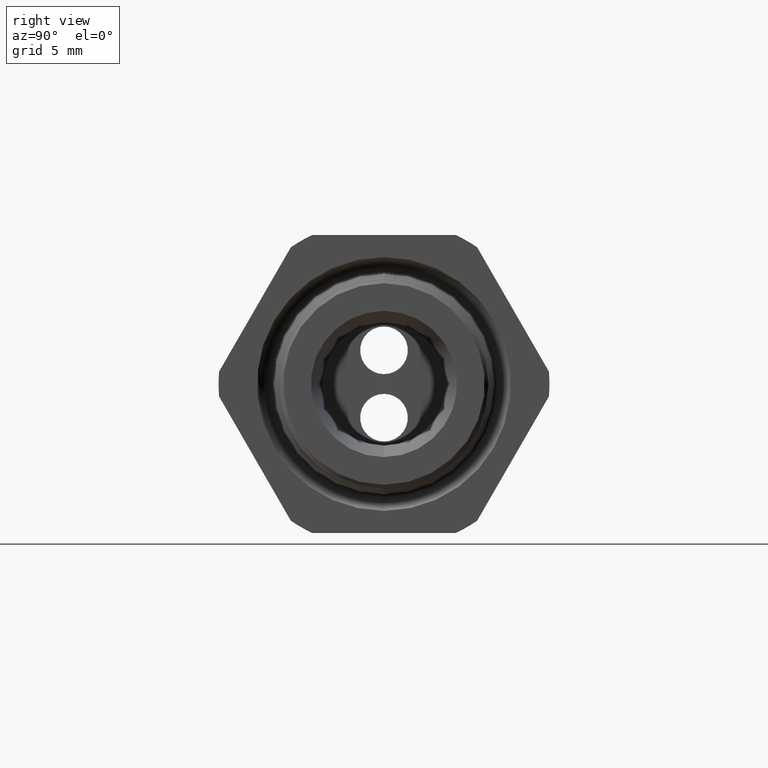
[diagram: clean part render]
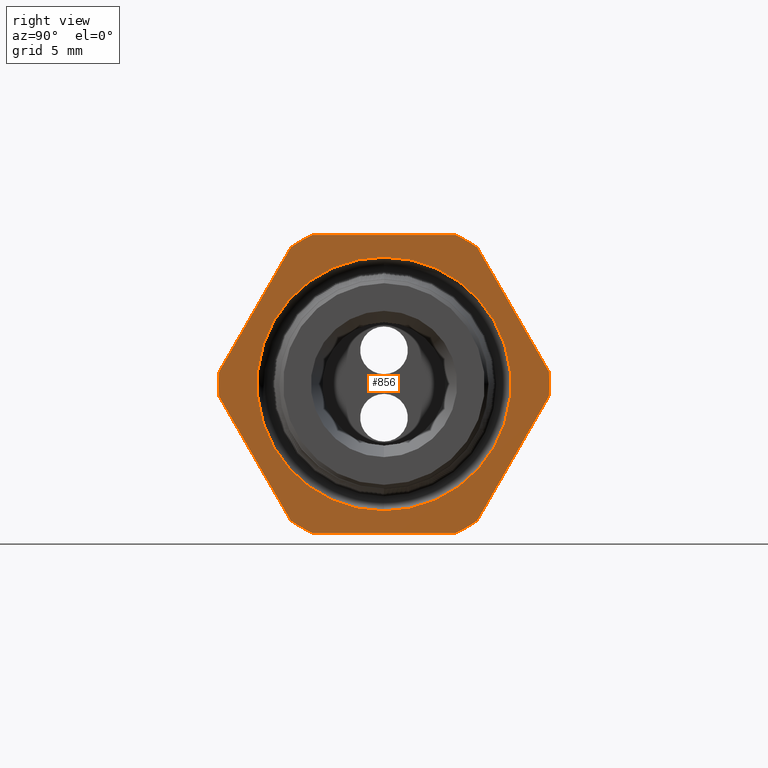
[diagram: same view with one face highlighted and labeled with its STEP entity id]
A machine part, right view. The second image highlights one B-rep face of the part: STEP entity #856.
In plain terms, the highlighted planar face has unit normal (1, 0, 0).
Its self-contained STEP definition (entity closure, byte-faithful):
#844 = EDGE_CURVE ( 'NONE', #927, #845, #3362, .T. ) ;
#845 = VERTEX_POINT ( 'NONE', #3353 ) ;
#846 = ORIENTED_EDGE ( 'NONE', *, *, #847, .T. ) ;
#847 = EDGE_CURVE ( 'NONE', #845, #848, #3352, .T. ) ;
#848 = VERTEX_POINT ( 'NONE', #3348 ) ;
#849 = ORIENTED_EDGE ( 'NONE', *, *, #850, .T. ) ;
#850 = EDGE_CURVE ( 'NONE', #848, #851, #3347, .T. ) ;
#851 = VERTEX_POINT ( 'NONE', #3342 ) ;
#852 = VERTEX_POINT ( 'NONE', #3341 ) ;
#856 = ADVANCED_FACE ( 'NONE', ( #3401, #3400 ), #3399, .T. ) ;
#857 = EDGE_LOOP ( 'NONE', ( #859, #861 ) ) ;
#859 = ORIENTED_EDGE ( 'NONE', *, *, #860, .F. ) ;
#860 = EDGE_CURVE ( 'NONE', #1481, #1367, #3392, .T. ) ;
#861 = ORIENTED_EDGE ( 'NONE', *, *, #1407, .F. ) ;
#862 = EDGE_LOOP ( 'NONE', ( #863, #867, #924, #928, #846, #849, #908, #910, #913, #916, #920, #892 ) ) ;
#863 = ORIENTED_EDGE ( 'NONE', *, *, #864, .T. ) ;
#864 = EDGE_CURVE ( 'NONE', #865, #866, #3393, .T. ) ;
#865 = VERTEX_POINT ( 'NONE', #3384 ) ;
#866 = VERTEX_POINT ( 'NONE', #3383 ) ;
#867 = ORIENTED_EDGE ( 'NONE', *, *, #868, .T. ) ;
#868 = EDGE_CURVE ( 'NONE', #866, #869, #3382, .T. ) ;
#869 = VERTEX_POINT ( 'NONE', #3377 ) ;
#892 = ORIENTED_EDGE ( 'NONE', *, *, #893, .T. ) ;
#893 = EDGE_CURVE ( 'NONE', #922, #865, #3488, .T. ) ;
#908 = ORIENTED_EDGE ( 'NONE', *, *, #909, .T. ) ;
#909 = EDGE_CURVE ( 'NONE', #851, #852, #3512, .T. ) ;
#910 = ORIENTED_EDGE ( 'NONE', *, *, #911, .T. ) ;
#911 = EDGE_CURVE ( 'NONE', #852, #912, #3508, .T. ) ;
#912 = VERTEX_POINT ( 'NONE', #3503 ) ;
#913 = ORIENTED_EDGE ( 'NONE', *, *, #914, .T. ) ;
#914 = EDGE_CURVE ( 'NONE', #912, #915, #3502, .T. ) ;
#915 = VERTEX_POINT ( 'NONE', #3498 ) ;
#916 = ORIENTED_EDGE ( 'NONE', *, *, #917, .T. ) ;
#917 = EDGE_CURVE ( 'NONE', #915, #918, #3497, .T. ) ;
#918 = VERTEX_POINT ( 'NONE', #3556 ) ;
#920 = ORIENTED_EDGE ( 'NONE', *, *, #921, .T. ) ;
#921 = EDGE_CURVE ( 'NONE', #918, #922, #3550, .T. ) ;
#922 = VERTEX_POINT ( 'NONE', #3546 ) ;
#924 = ORIENTED_EDGE ( 'NONE', *, *, #926, .T. ) ;
#926 = EDGE_CURVE ( 'NONE', #869, #927, #3545, .T. ) ;
#927 = VERTEX_POINT ( 'NONE', #3541 ) ;
#928 = ORIENTED_EDGE ( 'NONE', *, *, #844, .T. ) ;
#1367 = VERTEX_POINT ( 'NONE', #4226 ) ;
#1407 = EDGE_CURVE ( 'NONE', #1367, #1481, #4236, .T. ) ;
#1481 = VERTEX_POINT ( 'NONE', #4445 ) ;
#3341 = CARTESIAN_POINT ( 'NONE',  ( -0.3100000000000000000, -0.4150909474475088000, 0.03104138925901241800 ) ) ;
#3342 = CARTESIAN_POINT ( 'NONE',  ( -0.3100000000000000000, -0.2344281053908205100, 0.3439586107409878200 ) ) ;
#3343 = DIRECTION ( 'NONE',  ( 0.0000000000000000000, 0.0000000000000000000, -1.000000000000000000 ) ) ;
#3344 = DIRECTION ( 'NONE',  ( 1.000000000000000000, 0.0000000000000000000, 0.0000000000000000000 ) ) ;
#3345 = CARTESIAN_POINT ( 'NONE',  ( -0.3100000000000000000, 0.0000000000000000000, 0.0000000000000000000 ) ) ;
#3346 = AXIS2_PLACEMENT_3D ( 'NONE', #3345, #3344, #3343 ) ;
#3347 = CIRCLE ( 'NONE', #3346, 0.4162500000000000100 ) ;
#3348 = CARTESIAN_POINT ( 'NONE',  ( -0.3100000000000000000, -0.1806628420566886700, 0.3749999999999999400 ) ) ;
#3349 = DIRECTION ( 'NONE',  ( 0.0000000000000000000, -1.000000000000000000, 0.0000000000000000000 ) ) ;
#3350 = VECTOR ( 'NONE', #3349, 39.37007874015748100 ) ;
#3351 = CARTESIAN_POINT ( 'NONE',  ( -0.3100000000000000000, 0.7500000000000001100, 0.3749999999999999400 ) ) ;
#3352 = LINE ( 'NONE', #3351, #3350 ) ;
#3353 = CARTESIAN_POINT ( 'NONE',  ( -0.3100000000000000000, 0.1806628420566887000, 0.3749999999999999400 ) ) ;
#3354 = DIRECTION ( 'NONE',  ( 0.0000000000000000000, 0.0000000000000000000, -1.000000000000000000 ) ) ;
#3355 = DIRECTION ( 'NONE',  ( 1.000000000000000000, 0.0000000000000000000, 0.0000000000000000000 ) ) ;
#3356 = CARTESIAN_POINT ( 'NONE',  ( -0.3100000000000000000, 0.0000000000000000000, 0.0000000000000000000 ) ) ;
#3357 = AXIS2_PLACEMENT_3D ( 'NONE', #3356, #3355, #3354 ) ;
#3362 = CIRCLE ( 'NONE', #3357, 0.4162499999999999500 ) ;
#3377 = CARTESIAN_POINT ( 'NONE',  ( -0.3100000000000000000, 0.4150909474475088000, 0.03104138925901233200 ) ) ;
#3378 = DIRECTION ( 'NONE',  ( 0.0000000000000000000, 0.0000000000000000000, -1.000000000000000000 ) ) ;
#3379 = DIRECTION ( 'NONE',  ( 1.000000000000000000, 0.0000000000000000000, 0.0000000000000000000 ) ) ;
#3380 = CARTESIAN_POINT ( 'NONE',  ( -0.3100000000000000000, 0.0000000000000000000, 0.0000000000000000000 ) ) ;
#3381 = AXIS2_PLACEMENT_3D ( 'NONE', #3380, #3379, #3378 ) ;
#3382 = CIRCLE ( 'NONE', #3381, 0.4162500000000000100 ) ;
#3383 = CARTESIAN_POINT ( 'NONE',  ( -0.3100000000000000000, 0.4150909474475088000, -0.03104138925901222000 ) ) ;
#3384 = CARTESIAN_POINT ( 'NONE',  ( -0.3100000000000000000, 0.2344281053908202900, -0.3439586107409879900 ) ) ;
#3385 = DIRECTION ( 'NONE',  ( 0.0000000000000000000, 0.5000000000000000000, 0.8660254037844386000 ) ) ;
#3386 = VECTOR ( 'NONE', #3385, 39.37007874015748900 ) ;
#3387 = CARTESIAN_POINT ( 'NONE',  ( -0.3100000000000000000, 0.5122595264191646100, 0.1372595264191644700 ) ) ;
#3388 = DIRECTION ( 'NONE',  ( 0.0000000000000000000, 0.0000000000000000000, -1.000000000000000000 ) ) ;
#3389 = DIRECTION ( 'NONE',  ( 1.000000000000000000, 0.0000000000000000000, 0.0000000000000000000 ) ) ;
#3390 = CARTESIAN_POINT ( 'NONE',  ( -0.3100000000000000000, 0.0000000000000000000, 0.0000000000000000000 ) ) ;
#3391 = AXIS2_PLACEMENT_3D ( 'NONE', #3390, #3389, #3388 ) ;
#3392 = CIRCLE ( 'NONE', #3391, 0.3192456312392313900 ) ;
#3393 = LINE ( 'NONE', #3387, #3386 ) ;
#3395 = DIRECTION ( 'NONE',  ( 0.0000000000000000000, 0.0000000000000000000, -1.000000000000000000 ) ) ;
#3396 = DIRECTION ( 'NONE',  ( 1.000000000000000000, 0.0000000000000000000, 0.0000000000000000000 ) ) ;
#3397 = CARTESIAN_POINT ( 'NONE',  ( -0.3100000000000000000, 0.7500000000000001100, 0.0000000000000000000 ) ) ;
#3398 = AXIS2_PLACEMENT_3D ( 'NONE', #3397, #3396, #3395 ) ;
#3399 = PLANE ( 'NONE',  #3398 ) ;
#3400 = FACE_OUTER_BOUND ( 'NONE', #862, .T. ) ;
#3401 = FACE_BOUND ( 'NONE', #857, .T. ) ;
#3484 = DIRECTION ( 'NONE',  ( 0.0000000000000000000, 0.0000000000000000000, -1.000000000000000000 ) ) ;
#3485 = DIRECTION ( 'NONE',  ( 1.000000000000000000, 0.0000000000000000000, 0.0000000000000000000 ) ) ;
#3486 = CARTESIAN_POINT ( 'NONE',  ( -0.3100000000000000000, 0.0000000000000000000, 0.0000000000000000000 ) ) ;
#3487 = AXIS2_PLACEMENT_3D ( 'NONE', #3486, #3485, #3484 ) ;
#3488 = CIRCLE ( 'NONE', #3487, 0.4162500000000000100 ) ;
#3493 = DIRECTION ( 'NONE',  ( 0.0000000000000000000, 0.0000000000000000000, -1.000000000000000000 ) ) ;
#3494 = DIRECTION ( 'NONE',  ( 1.000000000000000000, 0.0000000000000000000, 0.0000000000000000000 ) ) ;
#3495 = CARTESIAN_POINT ( 'NONE',  ( -0.3100000000000000000, 0.0000000000000000000, 0.0000000000000000000 ) ) ;
#3496 = AXIS2_PLACEMENT_3D ( 'NONE', #3495, #3494, #3493 ) ;
#3497 = CIRCLE ( 'NONE', #3496, 0.4162500000000000100 ) ;
#3498 = CARTESIAN_POINT ( 'NONE',  ( -0.3100000000000000000, -0.2344281053908202100, -0.3439586107409880500 ) ) ;
#3499 = DIRECTION ( 'NONE',  ( 0.0000000000000000000, 0.5000000000000003300, -0.8660254037844383700 ) ) ;
#3500 = VECTOR ( 'NONE', #3499, 39.37007874015748100 ) ;
#3501 = CARTESIAN_POINT ( 'NONE',  ( -0.3100000000000000000, -0.1372595264191642800, -0.5122595264191648300 ) ) ;
#3502 = LINE ( 'NONE', #3501, #3500 ) ;
#3503 = CARTESIAN_POINT ( 'NONE',  ( -0.3100000000000000000, -0.4150909474475088000, -0.03104138925901237000 ) ) ;
#3504 = DIRECTION ( 'NONE',  ( 0.0000000000000000000, 0.0000000000000000000, -1.000000000000000000 ) ) ;
#3505 = DIRECTION ( 'NONE',  ( 1.000000000000000000, 0.0000000000000000000, 0.0000000000000000000 ) ) ;
#3506 = CARTESIAN_POINT ( 'NONE',  ( -0.3100000000000000000, 0.0000000000000000000, 0.0000000000000000000 ) ) ;
#3507 = AXIS2_PLACEMENT_3D ( 'NONE', #3506, #3505, #3504 ) ;
#3508 = CIRCLE ( 'NONE', #3507, 0.4162500000000000100 ) ;
#3509 = DIRECTION ( 'NONE',  ( 0.0000000000000000000, -0.4999999999999998300, -0.8660254037844386000 ) ) ;
#3510 = VECTOR ( 'NONE', #3509, 39.37007874015748900 ) ;
#3511 = CARTESIAN_POINT ( 'NONE',  ( -0.3100000000000000000, -0.1372595264191648300, 0.5122595264191645000 ) ) ;
#3512 = LINE ( 'NONE', #3511, #3510 ) ;
#3541 = CARTESIAN_POINT ( 'NONE',  ( -0.3100000000000000000, 0.2344281053908206000, 0.3439586107409877100 ) ) ;
#3542 = DIRECTION ( 'NONE',  ( 0.0000000000000000000, -0.4999999999999998900, 0.8660254037844386000 ) ) ;
#3543 = VECTOR ( 'NONE', #3542, 39.37007874015748100 ) ;
#3544 = CARTESIAN_POINT ( 'NONE',  ( -0.3100000000000000000, 0.5122595264191646100, -0.1372595264191644500 ) ) ;
#3545 = LINE ( 'NONE', #3544, #3543 ) ;
#3546 = CARTESIAN_POINT ( 'NONE',  ( -0.3100000000000000000, 0.1806628420566884800, -0.3750000000000001100 ) ) ;
#3547 = DIRECTION ( 'NONE',  ( 0.0000000000000000000, 1.000000000000000000, 0.0000000000000000000 ) ) ;
#3548 = VECTOR ( 'NONE', #3547, 39.37007874015748100 ) ;
#3549 = CARTESIAN_POINT ( 'NONE',  ( -0.3100000000000000000, 0.7500000000000001100, -0.3750000000000001100 ) ) ;
#3550 = LINE ( 'NONE', #3549, #3548 ) ;
#3556 = CARTESIAN_POINT ( 'NONE',  ( -0.3100000000000000000, -0.1806628420566883900, -0.3750000000000001100 ) ) ;
#4226 = CARTESIAN_POINT ( 'NONE',  ( -0.3100000000000000000, 3.909631404389010100E-017, 0.3192456312392313900 ) ) ;
#4233 = DIRECTION ( 'NONE',  ( 1.000000000000000000, 0.0000000000000000000, 0.0000000000000000000 ) ) ;
#4234 = CARTESIAN_POINT ( 'NONE',  ( -0.3100000000000000000, 0.0000000000000000000, 0.0000000000000000000 ) ) ;
#4235 = AXIS2_PLACEMENT_3D ( 'NONE', #4234, #4233, #4292 ) ;
#4236 = CIRCLE ( 'NONE', #4235, 0.3192456312392313900 ) ;
#4292 = DIRECTION ( 'NONE',  ( 0.0000000000000000000, 0.0000000000000000000, -1.000000000000000000 ) ) ;
#4445 = CARTESIAN_POINT ( 'NONE',  ( -0.3100000000000000000, 0.0000000000000000000, -0.3192456312392313900 ) ) ;